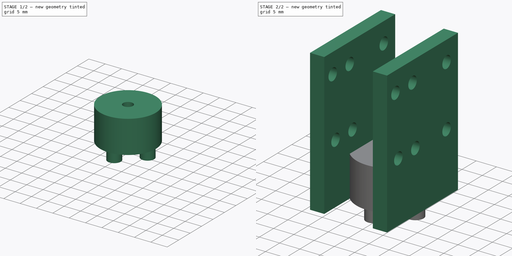
[diagram: build sequence overview — one tinted view per stage of 2, left to right]
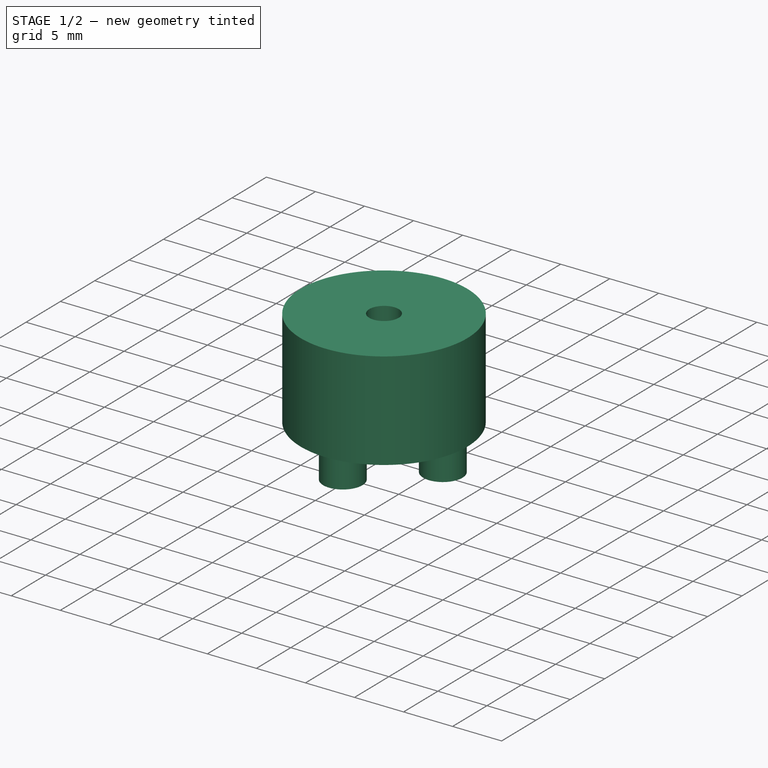
[diagram: stage 1 of 2 — iso view after this stage's code; geometry added in this stage tinted green]
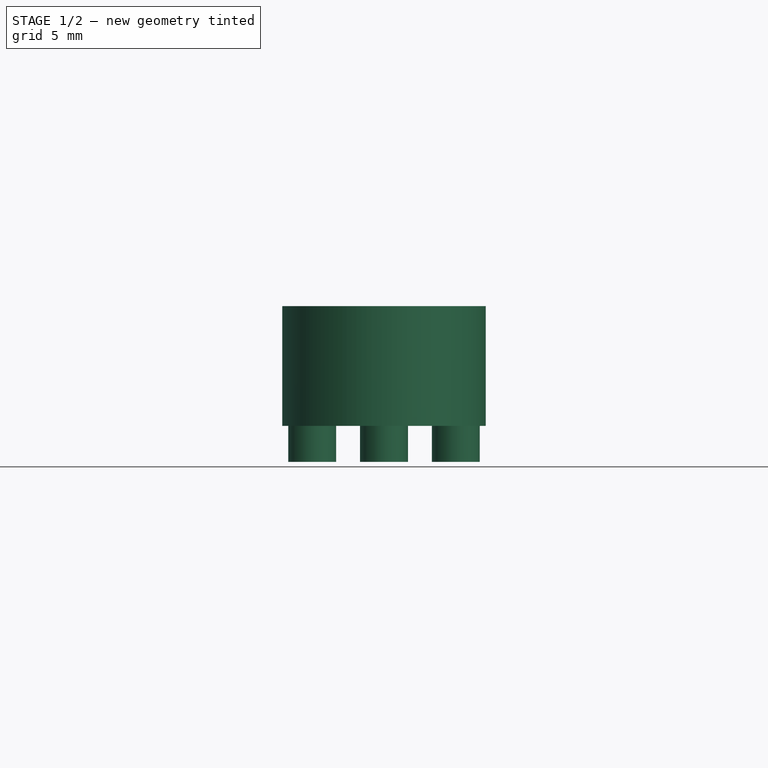
[diagram: stage 1 of 2 — front view after this stage's code; geometry added in this stage tinted green]
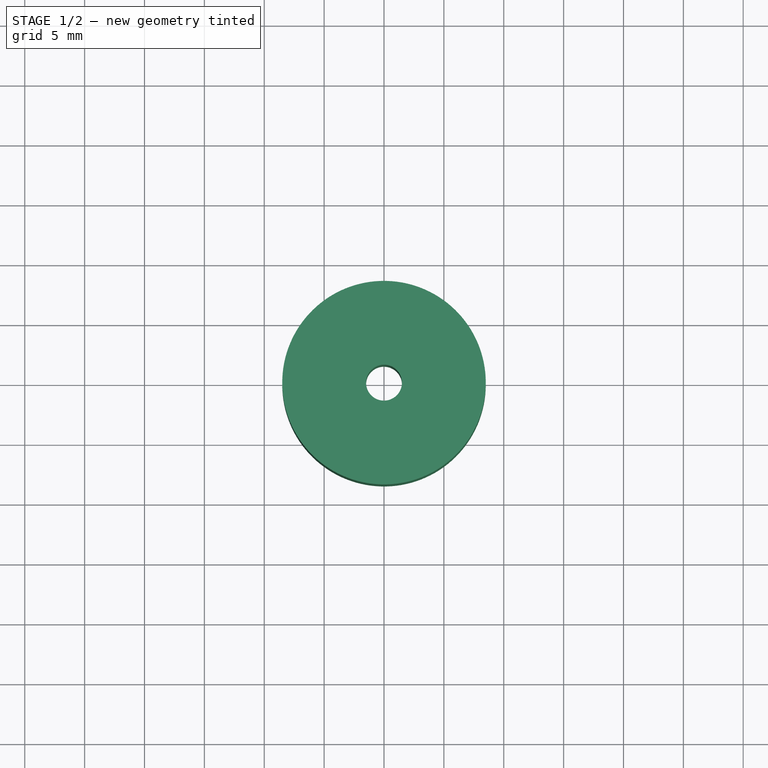
[diagram: stage 1 of 2 — top view after this stage's code; geometry added in this stage tinted green]
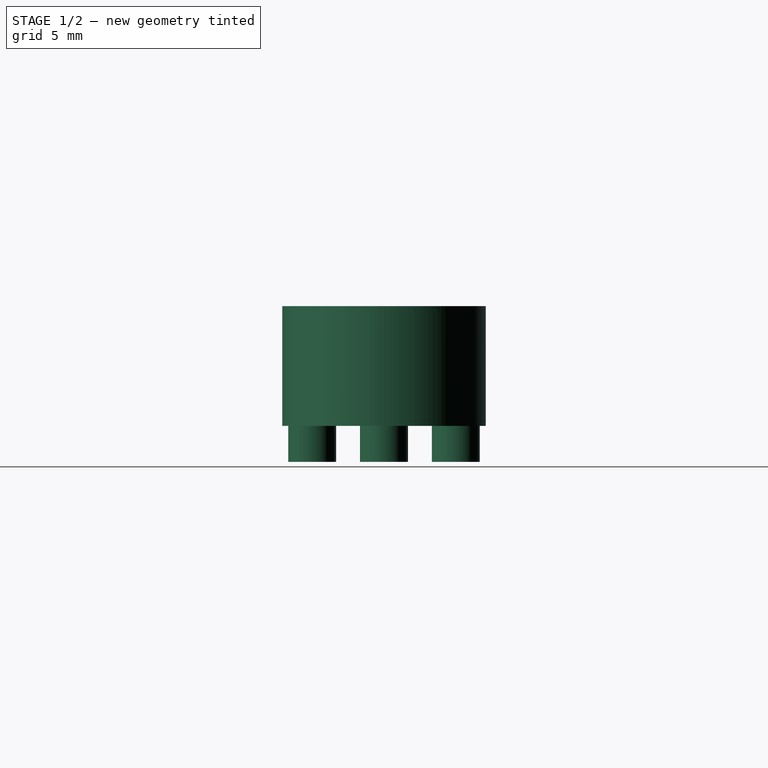
[diagram: stage 1 of 2 — right view after this stage's code; geometry added in this stage tinted green]
FCSTD DOCUMENT  (FreeCAD 0.16R6707 (Git))
Label: couplage_pince_secondaire_XL-320
License: All rights reserved
LicenseURL: http://en.wikipedia.org/wiki/All_rights_reserved
objects: Sketcher::SketchObject×4, PartDesign::Pad×3, PartDesign::Pocket×1
note: 12 computed .brp shape members not serialized (recipe doc carries the construction recipe); baked Part::Feature solids carry a one-line shape summary decoded from their .brp

FEATURE [Sketcher::SketchObject] Sketch
  sketch-geometry (2):
    g0: Circle CenterX=0 CenterY=0 CenterZ=0 NormalX=0 NormalY=0 NormalZ=1 Radius=8.5
    g1: Circle CenterX=0 CenterY=0 CenterZ=0 NormalX=0 NormalY=0 NormalZ=1 Radius=1.5
  constraints (4):
    c: Coincident(g0,g-1)
    c: Radius(g0) = 8.5
    c: Coincident(g1,g-1)
    c: Radius(g1) = 1.5
FEATURE [PartDesign::Pad] Pad
  Length = 10
  Length2 = 100
  Sketch = -> Sketch
  Type = 0
FEATURE [Sketcher::SketchObject] Sketch001
  Placement = pos=(0,0,0) rot=(1,0,0;3.14159rad)
  Support = -> Pad [Face2]
  sketch-geometry (4):
    g0: Circle CenterX=0 CenterY=-6 CenterZ=0 NormalX=0 NormalY=0 NormalZ=1 Radius=2
    g1: Circle CenterX=6 CenterY=0 CenterZ=0 NormalX=0 NormalY=0 NormalZ=1 Radius=2
    g2: Circle CenterX=0 CenterY=6 CenterZ=0 NormalX=0 NormalY=0 NormalZ=1 Radius=2
    g3: Circle CenterX=-6 CenterY=0 CenterZ=0 NormalX=0 NormalY=0 NormalZ=1 Radius=2
  constraints (12):
    c: PointOnObject(g0,g-2)
    c: PointOnObject(g1,g-1)
    c: PointOnObject(g2,g-2)
    c: PointOnObject(g3,g-1)
    c: Radius(g0) = 2
    c: Equal(g0,g3)
    c: Equal(g0,g1)
    c: Equal(g0,g2)
    c: DistanceX(g3) = -6
    c: DistanceX(g0,g1) = 6
    c: DistanceY(g0) = -6
    c: DistanceY(g2) = 6
FEATURE [PartDesign::Pad] Pad001
  Length = 3
  Length2 = 100
  Sketch = -> Sketch001
  Type = 0
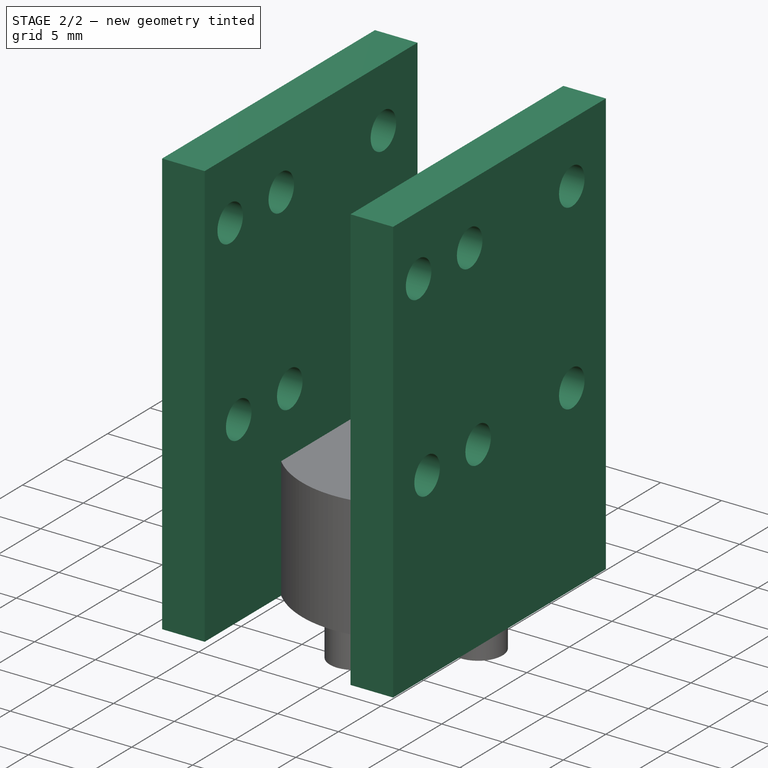
[diagram: stage 2 of 2 — iso view after this stage's code; geometry added in this stage tinted green]
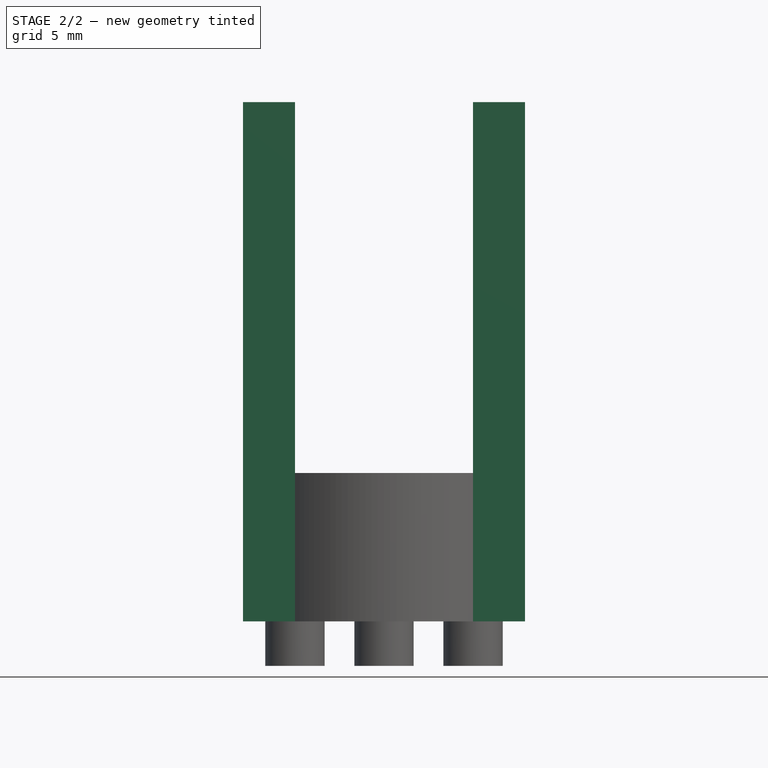
[diagram: stage 2 of 2 — front view after this stage's code; geometry added in this stage tinted green]
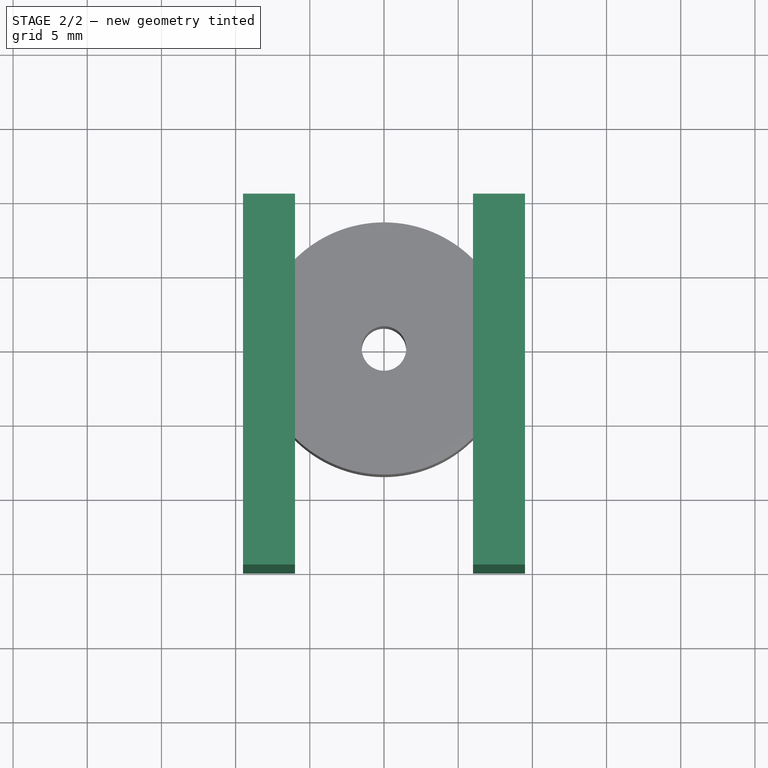
[diagram: stage 2 of 2 — top view after this stage's code; geometry added in this stage tinted green]
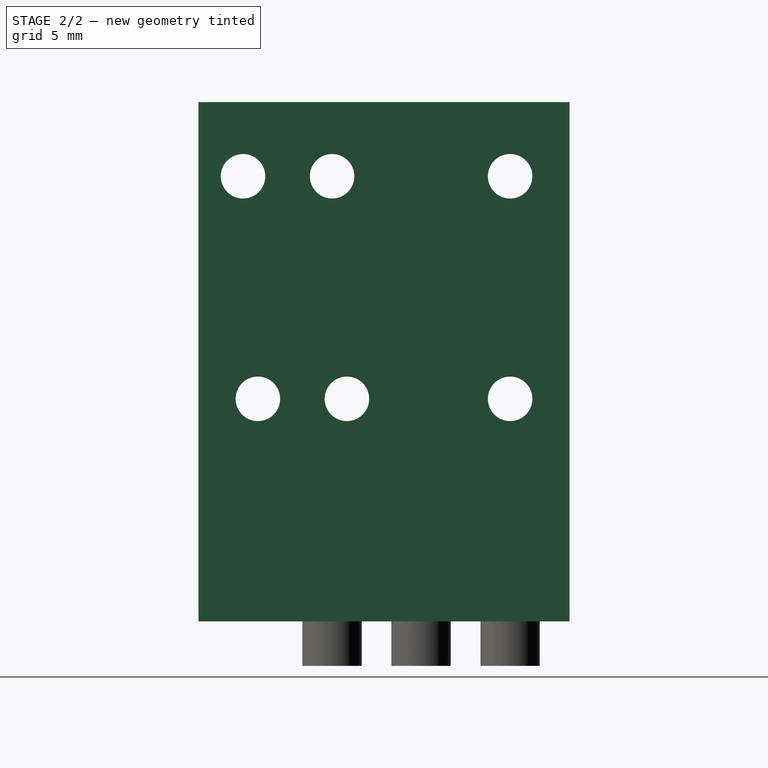
[diagram: stage 2 of 2 — right view after this stage's code; geometry added in this stage tinted green]
FEATURE [Sketcher::SketchObject] Sketch002
  Placement = pos=(0,0,10) rot=(0,0,1;0rad)
  Support = -> Pad001 [Face3]
  sketch-geometry (8):
    g0: LineSegment StartX=-6 StartY=10 StartZ=0 EndX=-9.5 EndY=10 EndZ=0
    g1: LineSegment StartX=-9.5 StartY=10 StartZ=0 EndX=-9.5 EndY=-15 EndZ=0
    g2: LineSegment StartX=-9.5 StartY=-15 StartZ=0 EndX=-6 EndY=-15 EndZ=0
    g3: LineSegment StartX=-6 StartY=-15 StartZ=0 EndX=-6 EndY=10 EndZ=0
    g4: LineSegment StartX=6 StartY=10 StartZ=0 EndX=9.5 EndY=10 EndZ=0
    g5: LineSegment StartX=9.5 StartY=10 StartZ=0 EndX=9.5 EndY=-15 EndZ=0
    g6: LineSegment StartX=9.5 StartY=-15 StartZ=0 EndX=6 EndY=-15 EndZ=0
    g7: LineSegment StartX=6 StartY=-15 StartZ=0 EndX=6 EndY=10 EndZ=0
  constraints (24):
    c: Coincident(g0,g1)
    c: Coincident(g1,g2)
    c: Coincident(g2,g3)
    c: Coincident(g3,g0)
    c: Horizontal(g0)
    c: Horizontal(g2)
    c: Vertical(g1)
    c: Vertical(g3)
    c: Coincident(g4,g5)
    c: Coincident(g5,g6)
    c: Coincident(g6,g7)
    c: Coincident(g7,g4)
    c: Horizontal(g4)
    c: Horizontal(g6)
    c: Vertical(g5)
    c: Vertical(g7)
    c: DistanceX(g0) = -6
    c: DistanceX(g4) = 6
    c: Distance(g0) = 3.5
    c: Distance(g4) = 3.5
    c: Distance(g1) = 25
    c: Distance(g7) = 25
    c: DistanceY(g4) = 10
    c: DistanceY(g0) = 10
FEATURE [PartDesign::Pad] Pad002
  Length = 25
  Length2 = 10
  Reversed = true
  Sketch = -> Sketch002
  Type = 4
FEATURE [Sketcher::SketchObject] Sketch003
  Placement = pos=(9.5,0,0) rot=(0.57735,0.57735,0.57735;2.0944rad)
  Support = -> Pad002 [Face27]
  sketch-geometry (6):
    g0: Circle CenterX=-11 CenterY=15 CenterZ=0 NormalX=0 NormalY=0 NormalZ=1 Radius=1.5
    g1: Circle CenterX=-5 CenterY=15 CenterZ=0 NormalX=0 NormalY=0 NormalZ=1 Radius=1.5
    g2: Circle CenterX=-12 CenterY=30 CenterZ=0 NormalX=0 NormalY=0 NormalZ=1 Radius=1.5
    g3: Circle CenterX=-6 CenterY=30 CenterZ=0 NormalX=0 NormalY=0 NormalZ=1 Radius=1.5
    g4: Circle CenterX=6 CenterY=30 CenterZ=0 NormalX=0 NormalY=0 NormalZ=1 Radius=1.5
    g5: Circle CenterX=6 CenterY=15 CenterZ=0 NormalX=0 NormalY=0 NormalZ=1 Radius=1.5
  constraints (18):
    c: DistanceX(g0,g1) = 6
    c: Radius(g0) = 1.5
    c: Equal(g0,g1)
    c: DistanceX(g1,g-1) = 5
    c: DistanceY(g-1,g1) = 15
    c: DistanceY(g0,g1) = 0
    c: DistanceY(g5,g4) = 15
    c: DistanceY(g5,g1) = 0
    c: DistanceX(g1,g5) = 11
    c: DistanceX(g4,g5) = 0
    c: DistanceY(g3,g4) = 0
    c: DistanceY(g2,g3) = 0
    c: DistanceX(g2,g3) = 6
    c: DistanceX(g3,g4) = 12
    c: Radius(g2) = 1.5
    c: Equal(g2,g3)
    c: Equal(g2,g4)
    c: Equal(g2,g5)
FEATURE [PartDesign::Pocket] Pocket
  Length = 5
  Sketch = -> Sketch003
  Type = 1
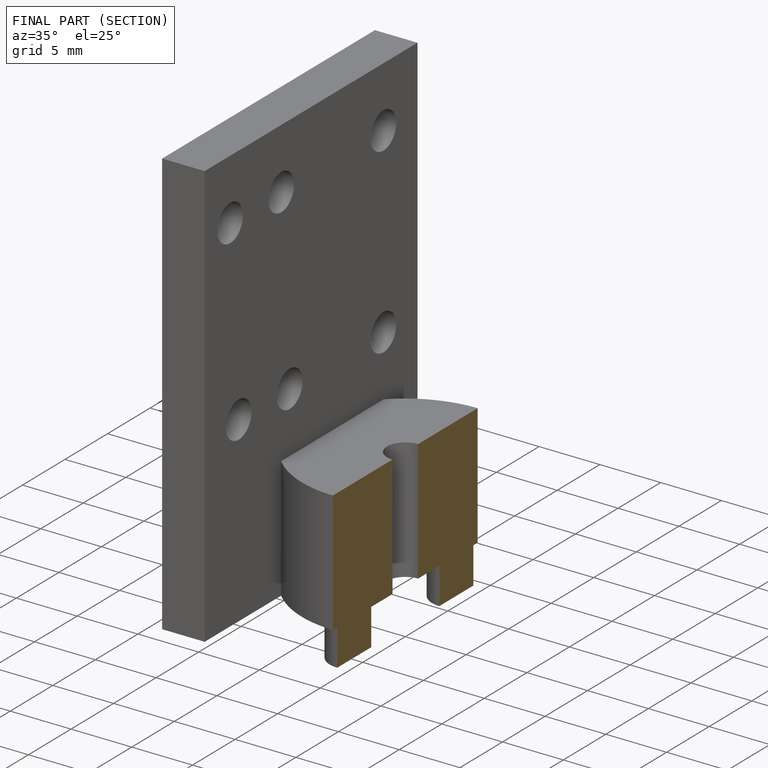
[diagram: finished part — half-section view (interior)]
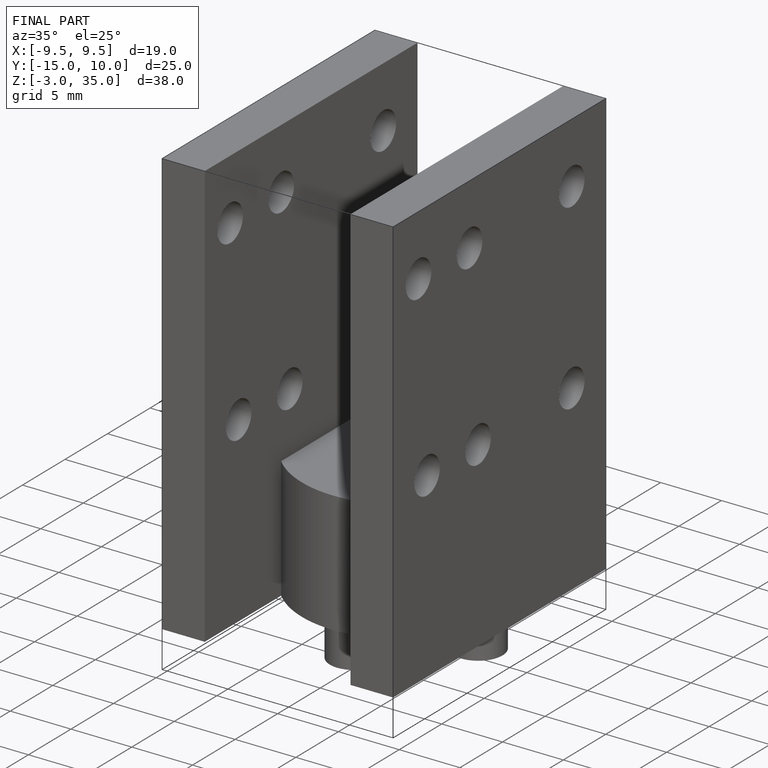
[diagram: finished part — iso view with bounding-box wireframe]
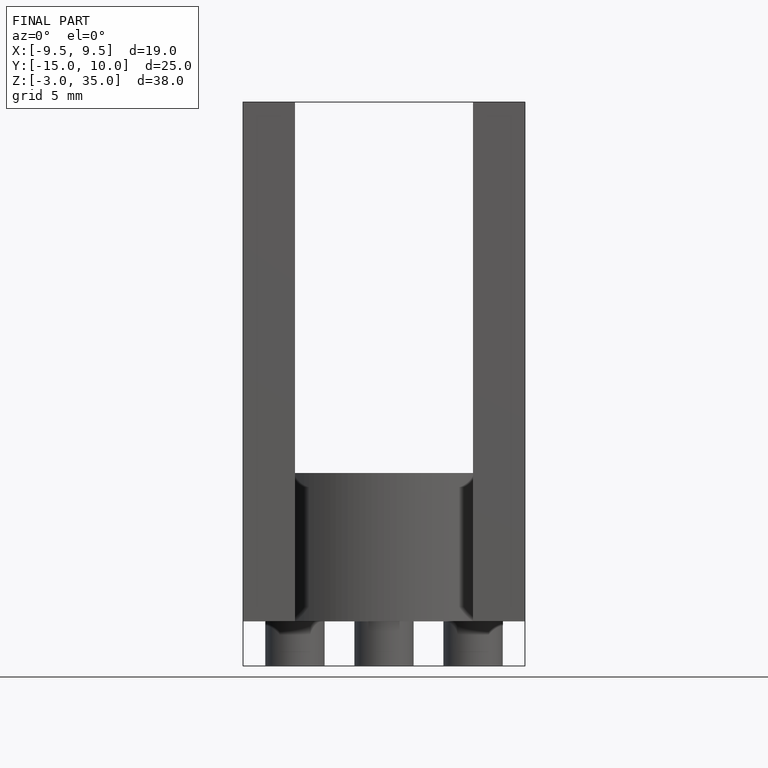
[diagram: finished part — front view with bounding-box wireframe]
